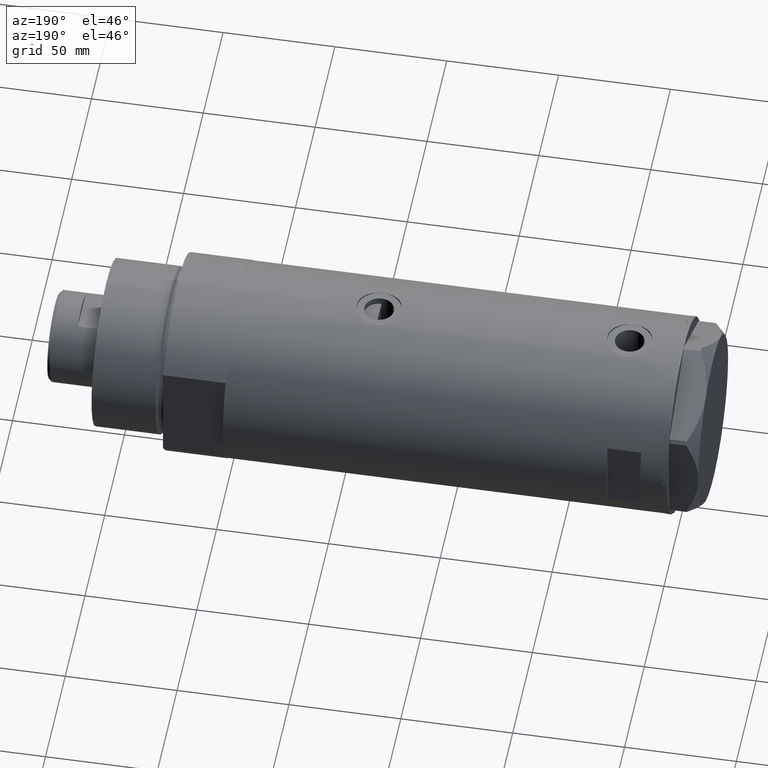
[diagram: clean part render]
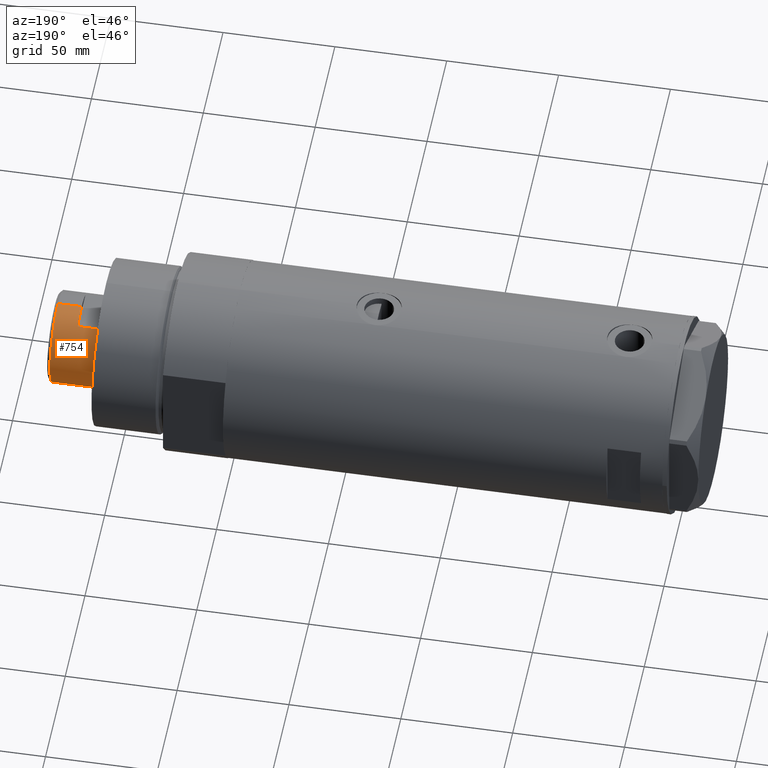
[diagram: same view with one face highlighted and labeled with its STEP entity id]
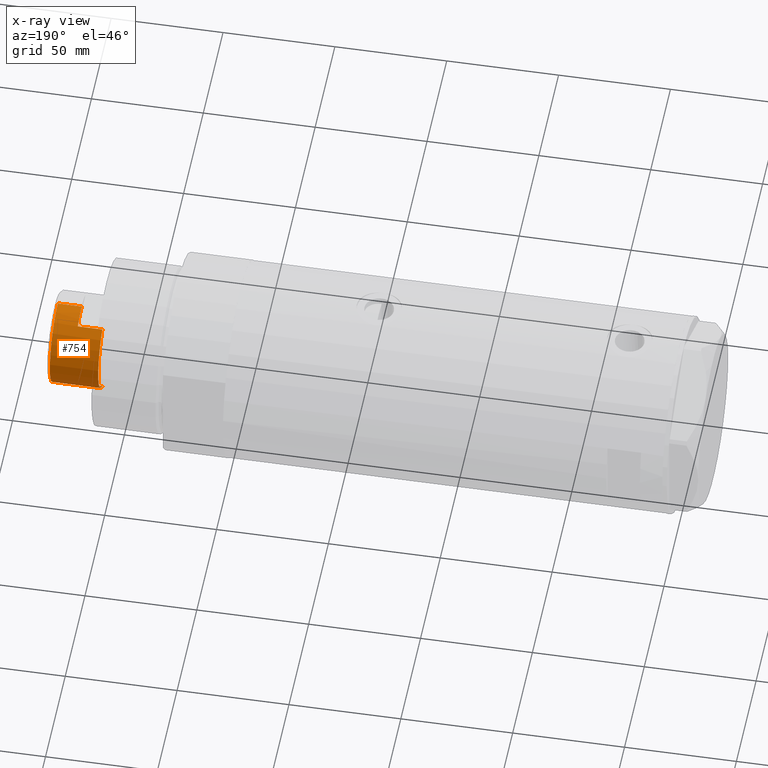
[diagram: x-ray of the same camera — body ghosted, the highlighted face saturated]
A machine part, auxiliary view. The second image highlights one B-rep face of the part: STEP entity #754.
The next image is the same camera in x-ray: the body ghosted, the highlighted face saturated — about 0% of this face is hidden behind the body in this view.
In plain terms, the highlighted cylindrical surface (partial cylindrical patch) has radius 20.5 mm, axis along (-1, -0, 0).
Its self-contained STEP definition (entity closure, byte-faithful):
#8 = EDGE_CURVE ( 'NONE', #4522, #1253, #3602, .T. ) ;
#72 = EDGE_CURVE ( 'NONE', #3879, #4522, #4357, .T. ) ;
#172 = DIRECTION ( 'NONE',  ( -1.000000000000000000, 0.000000000000000000, 0.000000000000000000 ) ) ;
#208 = VERTEX_POINT ( 'NONE', #4157 ) ;
#230 = ORIENTED_EDGE ( 'NONE', *, *, #1302, .T. ) ;
#278 = CARTESIAN_POINT ( 'NONE',  ( 20.50000000000000000, 2.510525938252074481E-15, 241.3000000000000114 ) ) ;
#294 = DIRECTION ( 'NONE',  ( -0.000000000000000000, -0.000000000000000000, -1.000000000000000000 ) ) ;
#329 = DIRECTION ( 'NONE',  ( 0.000000000000000000, 0.000000000000000000, -1.000000000000000000 ) ) ;
#373 = CARTESIAN_POINT ( 'NONE',  ( 0.000000000000000000, 0.000000000000000000, 251.9000000000001194 ) ) ;
#402 = DIRECTION ( 'NONE',  ( -0.000000000000000000, -0.000000000000000000, -1.000000000000000000 ) ) ;
#420 = CARTESIAN_POINT ( 'NONE',  ( 0.000000000000000000, 0.000000000000000000, 241.3000000000000114 ) ) ;
#586 = VECTOR ( 'NONE', #4020, 1000.000000000000000 ) ;
#650 = VECTOR ( 'NONE', #402, 1000.000000000000000 ) ;
#665 = VERTEX_POINT ( 'NONE', #2163 ) ;
#696 = LINE ( 'NONE', #3557, #650 ) ;
#754 = ADVANCED_FACE ( 'NONE', ( #2934 ), #4323, .T. ) ;
#758 = VECTOR ( 'NONE', #294, 1000.000000000000000 ) ;
#803 = AXIS2_PLACEMENT_3D ( 'NONE', #2852, #2502, #3909 ) ;
#847 = CARTESIAN_POINT ( 'NONE',  ( 0.000000000000000000, 0.000000000000000000, 241.3000000000000114 ) ) ;
#1011 = CARTESIAN_POINT ( 'NONE',  ( -17.97852886083842705, 9.849999999999997868, 241.3000000000000114 ) ) ;
#1119 = DIRECTION ( 'NONE',  ( 1.000000000000000000, 0.000000000000000000, 0.000000000000000000 ) ) ;
#1155 = EDGE_CURVE ( 'NONE', #665, #3524, #2787, .T. ) ;
#1253 = VERTEX_POINT ( 'NONE', #1422 ) ;
#1302 = EDGE_CURVE ( 'NONE', #2953, #3879, #2660, .T. ) ;
#1388 = ORIENTED_EDGE ( 'NONE', *, *, #2637, .T. ) ;
#1391 = AXIS2_PLACEMENT_3D ( 'NONE', #373, #329, #2780 ) ;
#1422 = CARTESIAN_POINT ( 'NONE',  ( 17.97852886083842705, 9.849999999999997868, 241.3000000000000114 ) ) ;
#1542 = CARTESIAN_POINT ( 'NONE',  ( 17.97852886083842705, 9.849999999999997868, 230.3000000000000114 ) ) ;
#1561 = ORIENTED_EDGE ( 'NONE', *, *, #8, .T. ) ;
#1620 = CARTESIAN_POINT ( 'NONE',  ( -17.97852886083842705, 9.849999999999965894, 230.3000000000000114 ) ) ;
#1823 = DIRECTION ( 'NONE',  ( 0.000000000000000000, 0.000000000000000000, 1.000000000000000000 ) ) ;
#1880 = ORIENTED_EDGE ( 'NONE', *, *, #72, .T. ) ;
#1933 = VERTEX_POINT ( 'NONE', #1542 ) ;
#1960 = AXIS2_PLACEMENT_3D ( 'NONE', #3783, #4468, #2721 ) ;
#2034 = ORIENTED_EDGE ( 'NONE', *, *, #1155, .F. ) ;
#2040 = CARTESIAN_POINT ( 'NONE',  ( 17.97852886083842705, 9.849999999999997868, 241.3000000000000114 ) ) ;
#2143 = LINE ( 'NONE', #2040, #758 ) ;
#2144 = CARTESIAN_POINT ( 'NONE',  ( -20.50000000000000355, 0.000000000000000000, 251.9000000000001194 ) ) ;
#2163 = CARTESIAN_POINT ( 'NONE',  ( -17.97852886083842705, 9.849999999999997868, 241.3000000000000114 ) ) ;
#2429 = DIRECTION ( 'NONE',  ( -0.000000000000000000, -0.000000000000000000, -1.000000000000000000 ) ) ;
#2462 = EDGE_CURVE ( 'NONE', #2953, #208, #696, .T. ) ;
#2502 = DIRECTION ( 'NONE',  ( 0.000000000000000000, 0.000000000000000000, 1.000000000000000000 ) ) ;
#2583 = EDGE_CURVE ( 'NONE', #665, #208, #2802, .T. ) ;
#2637 = EDGE_CURVE ( 'NONE', #1933, #3524, #3142, .T. ) ;
#2660 = CIRCLE ( 'NONE', #1391, 20.50000000000000355 ) ;
#2721 = DIRECTION ( 'NONE',  ( 1.000000000000000000, 0.000000000000000000, 0.000000000000000000 ) ) ;
#2780 = DIRECTION ( 'NONE',  ( 1.000000000000000000, 0.000000000000000000, 0.000000000000000000 ) ) ;
#2787 = LINE ( 'NONE', #1011, #3469 ) ;
#2802 = CIRCLE ( 'NONE', #803, 20.50000000000000000 ) ;
#2824 = EDGE_LOOP ( 'NONE', ( #230, #1880, #1561, #2890, #1388, #2034, #4027, #4444 ) ) ;
#2852 = CARTESIAN_POINT ( 'NONE',  ( 0.000000000000000000, 0.000000000000000000, 241.3000000000000114 ) ) ;
#2890 = ORIENTED_EDGE ( 'NONE', *, *, #3402, .T. ) ;
#2934 = FACE_OUTER_BOUND ( 'NONE', #2824, .T. ) ;
#2953 = VERTEX_POINT ( 'NONE', #2144 ) ;
#3142 = CIRCLE ( 'NONE', #1960, 20.49999999999998934 ) ;
#3168 = AXIS2_PLACEMENT_3D ( 'NONE', #420, #1823, #1119 ) ;
#3338 = CARTESIAN_POINT ( 'NONE',  ( 20.50000000000000355, 2.510525938252074481E-15, 241.3000000000000114 ) ) ;
#3402 = EDGE_CURVE ( 'NONE', #1253, #1933, #2143, .T. ) ;
#3466 = AXIS2_PLACEMENT_3D ( 'NONE', #847, #3940, #172 ) ;
#3469 = VECTOR ( 'NONE', #2429, 1000.000000000000000 ) ;
#3524 = VERTEX_POINT ( 'NONE', #1620 ) ;
#3557 = CARTESIAN_POINT ( 'NONE',  ( -20.50000000000000355, 0.000000000000000000, 241.3000000000000114 ) ) ;
#3602 = CIRCLE ( 'NONE', #3168, 20.50000000000000000 ) ;
#3783 = CARTESIAN_POINT ( 'NONE',  ( 0.000000000000000000, 0.000000000000000000, 230.3000000000000114 ) ) ;
#3804 = CARTESIAN_POINT ( 'NONE',  ( 20.50000000000000355, 2.510525938252074481E-15, 251.9000000000001194 ) ) ;
#3879 = VERTEX_POINT ( 'NONE', #3804 ) ;
#3909 = DIRECTION ( 'NONE',  ( 1.000000000000000000, 0.000000000000000000, 0.000000000000000000 ) ) ;
#3940 = DIRECTION ( 'NONE',  ( -0.000000000000000000, -0.000000000000000000, -1.000000000000000000 ) ) ;
#4020 = DIRECTION ( 'NONE',  ( -0.000000000000000000, -0.000000000000000000, -1.000000000000000000 ) ) ;
#4027 = ORIENTED_EDGE ( 'NONE', *, *, #2583, .T. ) ;
#4157 = CARTESIAN_POINT ( 'NONE',  ( -20.50000000000000000, 0.000000000000000000, 241.3000000000000114 ) ) ;
#4323 = CYLINDRICAL_SURFACE ( 'NONE', #3466, 20.50000000000000355 ) ;
#4357 = LINE ( 'NONE', #3338, #586 ) ;
#4444 = ORIENTED_EDGE ( 'NONE', *, *, #2462, .F. ) ;
#4468 = DIRECTION ( 'NONE',  ( 0.000000000000000000, 0.000000000000000000, 1.000000000000000000 ) ) ;
#4522 = VERTEX_POINT ( 'NONE', #278 ) ;